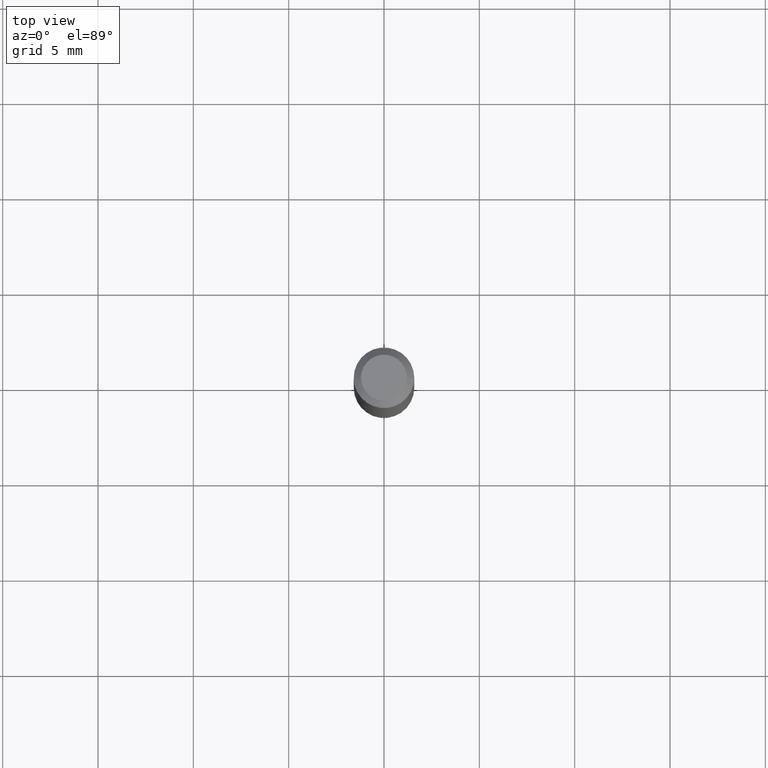
[diagram: clean part render]
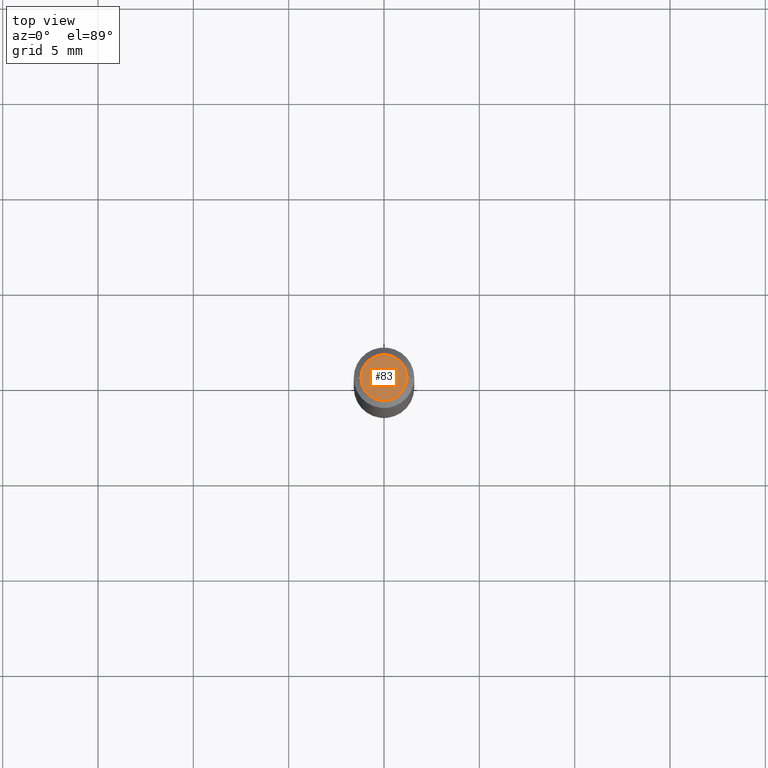
[diagram: same view with one face highlighted and labeled with its STEP entity id]
A machine part, top view. The second image highlights one B-rep face of the part: STEP entity #83.
In plain terms, the highlighted planar face has unit normal (0, -0, -1).
Its self-contained STEP definition (entity closure, byte-faithful):
#7 = DIRECTION ( 'NONE',  ( -1.000000000000000000, 6.982962677686265922E-15, -4.876176775795935793E-29 ) ) ;
#21 = CARTESIAN_POINT ( 'NONE',  ( 0.04749999999999999362, -4.035134999187576158E-16, 1.370093274944008177E-16 ) ) ;
#45 = VERTEX_POINT ( 'NONE', #119 ) ;
#71 = ORIENTED_EDGE ( 'NONE', *, *, #298, .T. ) ;
#79 = AXIS2_PLACEMENT_3D ( 'NONE', #239, #134, #209 ) ;
#83 = ADVANCED_FACE ( 'NONE', ( #403 ), #88, .F. ) ;
#88 = PLANE ( 'NONE',  #232 ) ;
#119 = CARTESIAN_POINT ( 'NONE',  ( -0.04749999999999999362, 3.578768372314212971E-16, 1.370093274943958627E-16 ) ) ;
#134 = DIRECTION ( 'NONE',  ( -2.445468806185136597E-29, 3.491481338843145583E-15, 1.000000000000000000 ) ) ;
#193 = VERTEX_POINT ( 'NONE', #21 ) ;
#209 = DIRECTION ( 'NONE',  ( 1.000000000000000000, -6.982962677686267499E-15, 4.852736867747366768E-29 ) ) ;
#210 = CIRCLE ( 'NONE', #452, 0.04749999999999999362 ) ;
#217 = DIRECTION ( 'NONE',  ( 1.000000000000000000, -6.982962677686267499E-15, 4.852736867747366768E-29 ) ) ;
#232 = AXIS2_PLACEMENT_3D ( 'NONE', #332, #337, #7 ) ;
#239 = CARTESIAN_POINT ( 'NONE',  ( -3.350520365439544480E-45, 4.783655101941405986E-31, 1.370093274943982539E-16 ) ) ;
#254 = CARTESIAN_POINT ( 'NONE',  ( -3.350520365439544480E-45, 4.783655101941405986E-31, 1.370093274943982539E-16 ) ) ;
#298 = EDGE_CURVE ( 'NONE', #193, #45, #310, .T. ) ;
#310 = CIRCLE ( 'NONE', #79, 0.04749999999999999362 ) ;
#332 = CARTESIAN_POINT ( 'NONE',  ( 3.316907271900976096E-16, 0.04749999999999999362, -9.734069984785028182E-17 ) ) ;
#337 = DIRECTION ( 'NONE',  ( 2.438088387897960049E-29, -3.491481338843145188E-15, -1.000000000000000000 ) ) ;
#343 = EDGE_LOOP ( 'NONE', ( #428, #71 ) ) ;
#361 = DIRECTION ( 'NONE',  ( -2.445468806185136597E-29, 3.491481338843145583E-15, 1.000000000000000000 ) ) ;
#403 = FACE_OUTER_BOUND ( 'NONE', #343, .T. ) ;
#428 = ORIENTED_EDGE ( 'NONE', *, *, #460, .T. ) ;
#452 = AXIS2_PLACEMENT_3D ( 'NONE', #254, #361, #217 ) ;
#460 = EDGE_CURVE ( 'NONE', #45, #193, #210, .T. ) ;